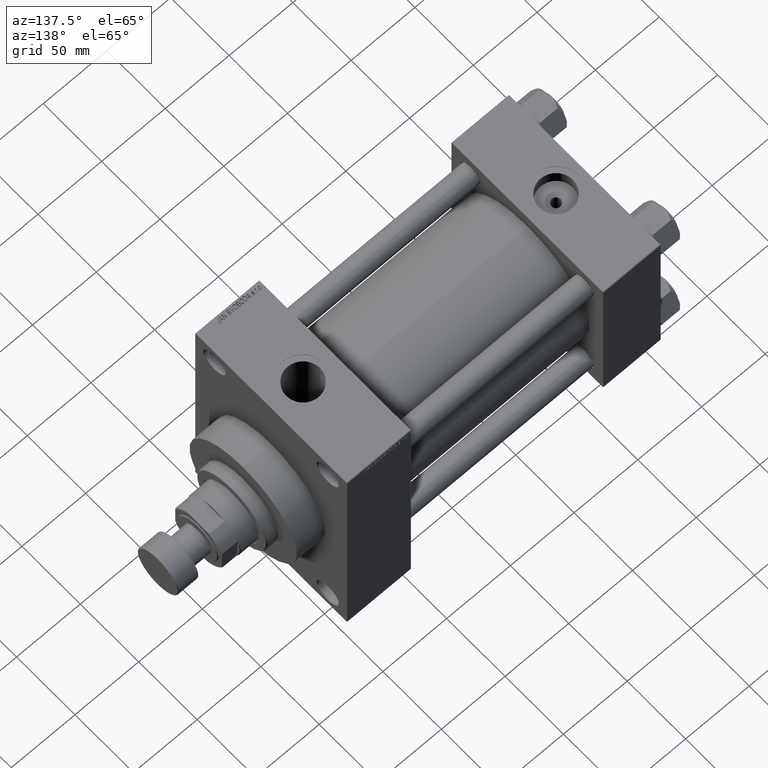
[diagram: clean part render]
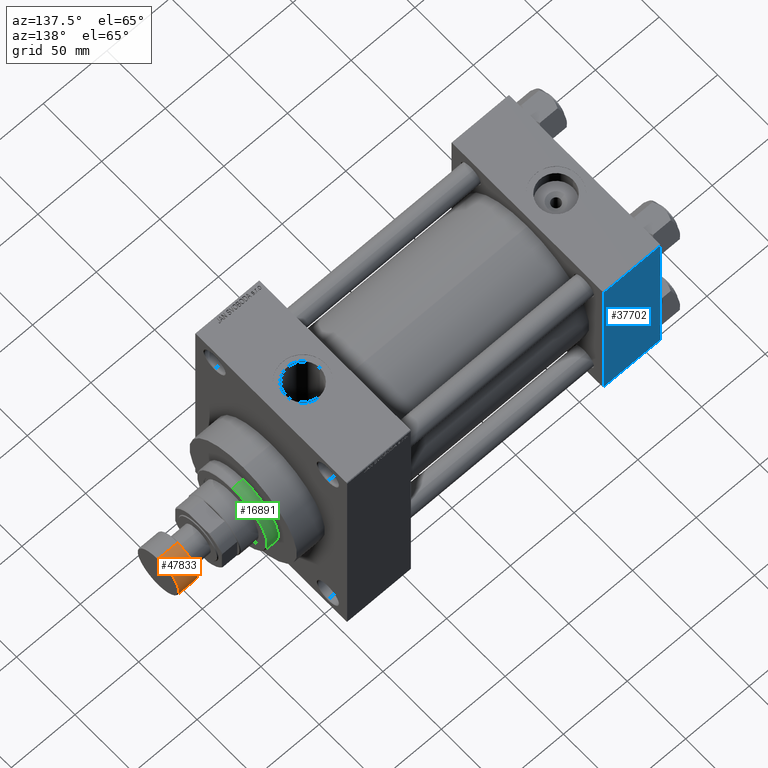
[diagram: same view with three faces highlighted in distinct colors, each labeled with its STEP entity id]
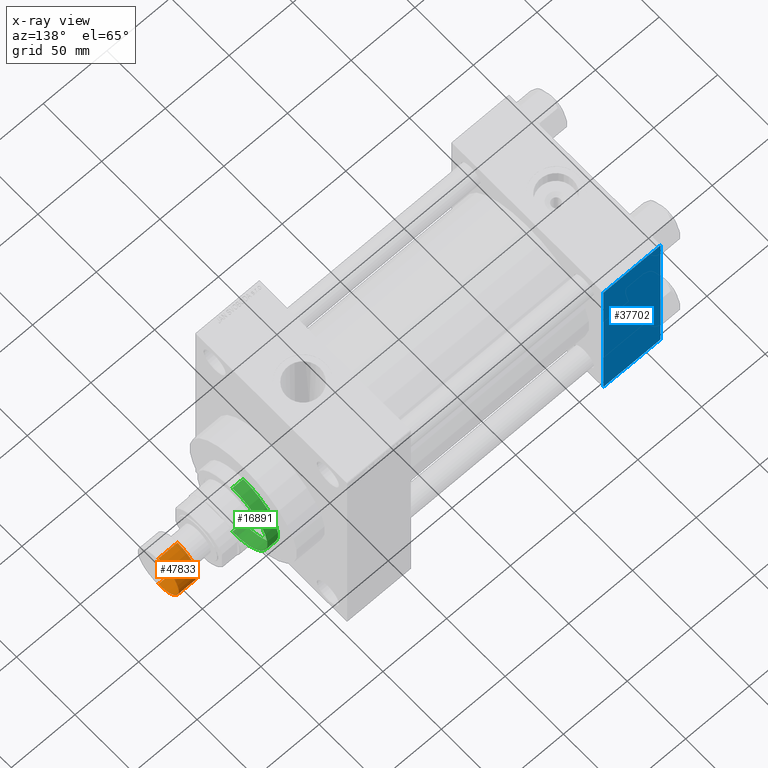
[diagram: x-ray of the same camera — body ghosted, the three highlighted faces saturated]
A machine part, auxiliary view with three faces highlighted in distinct colors.
The next image is the same camera in x-ray (body ghosted, the three faces saturated) — at least one of them is partly hidden behind the body in this view.
Their STEP definitions:

[orange] entity #47833 — the highlighted cylindrical surface (edge-blend (fillet) strip) has radius 17.5 mm, axis along (1, 0, 0).
#1534 = CARTESIAN_POINT ( 'NONE',  ( 17.50000000000000355, 0.000000000000000000, -15.50000000000000000 ) ) ;
#1597 = EDGE_LOOP ( 'NONE', ( #19104, #9217, #35780, #35226 ) ) ;
#1775 = DIRECTION ( 'NONE',  ( 0.000000000000000000, 0.000000000000000000, 1.000000000000000000 ) ) ;
#2629 = DIRECTION ( 'NONE',  ( -0.000000000000000000, -0.000000000000000000, -1.000000000000000000 ) ) ;
#4129 = VECTOR ( 'NONE', #20051, 1000.000000000000000 ) ;
#4612 = DIRECTION ( 'NONE',  ( 0.000000000000000000, 0.000000000000000000, 1.000000000000000000 ) ) ;
#5244 = DIRECTION ( 'NONE',  ( 0.000000000000000000, 0.000000000000000000, 1.000000000000000000 ) ) ;
#6833 = VERTEX_POINT ( 'NONE', #10805 ) ;
#8410 = DIRECTION ( 'NONE',  ( 1.000000000000000000, 0.000000000000000000, 0.000000000000000000 ) ) ;
#9217 = ORIENTED_EDGE ( 'NONE', *, *, #32279, .T. ) ;
#9410 = CARTESIAN_POINT ( 'NONE',  ( 17.50000000000000355, 0.000000000000000000, -0.5000000000000004441 ) ) ;
#10805 = CARTESIAN_POINT ( 'NONE',  ( -17.50000000000000355, 2.143131898507868643E-15, -15.50000000000000000 ) ) ;
#12411 = CARTESIAN_POINT ( 'NONE',  ( 0.000000000000000000, 0.000000000000000000, -0.5000000000000004441 ) ) ;
#14746 = EDGE_CURVE ( 'NONE', #24363, #37022, #19382, .T. ) ;
#16433 = FACE_OUTER_BOUND ( 'NONE', #1597, .T. ) ;
#17051 = AXIS2_PLACEMENT_3D ( 'NONE', #12411, #2629, #31406 ) ;
#19104 = ORIENTED_EDGE ( 'NONE', *, *, #19521, .T. ) ;
#19382 = CIRCLE ( 'NONE', #17051, 17.50000000000000355 ) ;
#19521 = EDGE_CURVE ( 'NONE', #32306, #6833, #31194, .T. ) ;
#20051 = DIRECTION ( 'NONE',  ( 0.000000000000000000, 0.000000000000000000, 1.000000000000000000 ) ) ;
#21981 = CARTESIAN_POINT ( 'NONE',  ( 0.000000000000000000, 0.000000000000000000, -15.50000000000000000 ) ) ;
#24363 = VERTEX_POINT ( 'NONE', #29172 ) ;
#26357 = EDGE_CURVE ( 'NONE', #32306, #37022, #41930, .T. ) ;
#26923 = CARTESIAN_POINT ( 'NONE',  ( 0.000000000000000000, 0.000000000000000000, -16.00000000000000000 ) ) ;
#27819 = LINE ( 'NONE', #35819, #34571 ) ;
#29172 = CARTESIAN_POINT ( 'NONE',  ( -17.50000000000000355, 2.143131898507868643E-15, -0.5000000000000004441 ) ) ;
#30815 = CYLINDRICAL_SURFACE ( 'NONE', #46180, 17.50000000000000355 ) ;
#31194 = CIRCLE ( 'NONE', #35831, 17.50000000000000355 ) ;
#31406 = DIRECTION ( 'NONE',  ( 1.000000000000000000, 0.000000000000000000, 0.000000000000000000 ) ) ;
#32279 = EDGE_CURVE ( 'NONE', #6833, #24363, #27819, .T. ) ;
#32306 = VERTEX_POINT ( 'NONE', #1534 ) ;
#33408 = DIRECTION ( 'NONE',  ( 1.000000000000000000, 0.000000000000000000, 0.000000000000000000 ) ) ;
#34159 = CARTESIAN_POINT ( 'NONE',  ( 17.50000000000000355, 0.000000000000000000, -16.00000000000000000 ) ) ;
#34571 = VECTOR ( 'NONE', #1775, 1000.000000000000000 ) ;
#35226 = ORIENTED_EDGE ( 'NONE', *, *, #26357, .F. ) ;
#35780 = ORIENTED_EDGE ( 'NONE', *, *, #14746, .T. ) ;
#35819 = CARTESIAN_POINT ( 'NONE',  ( -17.50000000000000355, 2.143131898507868643E-15, -16.00000000000000000 ) ) ;
#35831 = AXIS2_PLACEMENT_3D ( 'NONE', #21981, #4612, #33408 ) ;
#37022 = VERTEX_POINT ( 'NONE', #9410 ) ;
#41930 = LINE ( 'NONE', #34159, #4129 ) ;
#46180 = AXIS2_PLACEMENT_3D ( 'NONE', #26923, #5244, #8410 ) ;
#47833 = ADVANCED_FACE ( 'NONE', ( #16433 ), #30815, .T. ) ;

[blue] entity #37702 — the highlighted planar face has unit normal (0, 1, 0).
#187 = CARTESIAN_POINT ( 'NONE',  ( 0.000000000000000000, 65.00000000000000000, 65.00000000000001421 ) ) ;
#1572 = ORIENTED_EDGE ( 'NONE', *, *, #1805, .T. ) ;
#1805 = EDGE_CURVE ( 'NONE', #47587, #46202, #20616, .T. ) ;
#2027 = EDGE_LOOP ( 'NONE', ( #38211, #1572, #46189, #26405 ) ) ;
#5386 = EDGE_CURVE ( 'NONE', #39507, #46202, #41532, .T. ) ;
#5939 = CARTESIAN_POINT ( 'NONE',  ( 45.00000000000000000, 65.00000000000000000, 64.49999999999998579 ) ) ;
#6155 = EDGE_CURVE ( 'NONE', #39507, #6782, #30734, .T. ) ;
#6782 = VERTEX_POINT ( 'NONE', #5939 ) ;
#10447 = FACE_OUTER_BOUND ( 'NONE', #2027, .T. ) ;
#14102 = CARTESIAN_POINT ( 'NONE',  ( 45.00000000000000000, 65.00000000000000000, 65.00000000000001421 ) ) ;
#15687 = AXIS2_PLACEMENT_3D ( 'NONE', #14102, #18482, #18001 ) ;
#16067 = CARTESIAN_POINT ( 'NONE',  ( 45.00000000000000000, 65.00000000000000000, -64.49999999999995737 ) ) ;
#16962 = CARTESIAN_POINT ( 'NONE',  ( 45.00000000000000000, 65.00000000000000000, -64.49999999999995737 ) ) ;
#18001 = DIRECTION ( 'NONE',  ( 0.000000000000000000, -0.000000000000000000, 1.000000000000000000 ) ) ;
#18482 = DIRECTION ( 'NONE',  ( -0.000000000000000000, 1.000000000000000000, 0.000000000000000000 ) ) ;
#20048 = VECTOR ( 'NONE', #37770, 1000.000000000000000 ) ;
#20616 = LINE ( 'NONE', #16962, #45643 ) ;
#22812 = VECTOR ( 'NONE', #30812, 1000.000000000000000 ) ;
#26405 = ORIENTED_EDGE ( 'NONE', *, *, #6155, .T. ) ;
#28014 = EDGE_CURVE ( 'NONE', #6782, #47587, #34446, .T. ) ;
#29444 = PLANE ( 'NONE',  #15687 ) ;
#29899 = DIRECTION ( 'NONE',  ( 0.000000000000000000, 0.000000000000000000, -1.000000000000000000 ) ) ;
#30734 = LINE ( 'NONE', #45563, #20048 ) ;
#30812 = DIRECTION ( 'NONE',  ( 0.000000000000000000, 0.000000000000000000, -1.000000000000000000 ) ) ;
#31049 = CARTESIAN_POINT ( 'NONE',  ( 45.00000000000000000, 65.00000000000000000, 65.00000000000001421 ) ) ;
#34446 = LINE ( 'NONE', #31049, #22812 ) ;
#37702 = ADVANCED_FACE ( 'NONE', ( #10447 ), #29444, .T. ) ;
#37770 = DIRECTION ( 'NONE',  ( 1.000000000000000000, 0.000000000000000000, 0.000000000000000000 ) ) ;
#38211 = ORIENTED_EDGE ( 'NONE', *, *, #28014, .T. ) ;
#38666 = VECTOR ( 'NONE', #29899, 1000.000000000000000 ) ;
#39507 = VERTEX_POINT ( 'NONE', #42093 ) ;
#41532 = LINE ( 'NONE', #187, #38666 ) ;
#42093 = CARTESIAN_POINT ( 'NONE',  ( 0.000000000000000000, 65.00000000000000000, 64.49999999999998579 ) ) ;
#43395 = CARTESIAN_POINT ( 'NONE',  ( 0.000000000000000000, 65.00000000000000000, -64.49999999999995737 ) ) ;
#45563 = CARTESIAN_POINT ( 'NONE',  ( 45.00000000000000000, 65.00000000000000000, 64.49999999999998579 ) ) ;
#45643 = VECTOR ( 'NONE', #46636, 1000.000000000000000 ) ;
#46189 = ORIENTED_EDGE ( 'NONE', *, *, #5386, .F. ) ;
#46202 = VERTEX_POINT ( 'NONE', #43395 ) ;
#46636 = DIRECTION ( 'NONE',  ( -1.000000000000000000, 0.000000000000000000, 0.000000000000000000 ) ) ;
#47587 = VERTEX_POINT ( 'NONE', #16067 ) ;

[green] entity #16891 — the highlighted cylindrical surface (partial cylindrical patch) has radius 30 mm, axis along (-1, 0, 0).
#366 = DIRECTION ( 'NONE',  ( 0.000000000000000000, 0.000000000000000000, 1.000000000000000000 ) ) ;
#1987 = VERTEX_POINT ( 'NONE', #46347 ) ;
#2008 = EDGE_CURVE ( 'NONE', #43790, #1987, #37883, .T. ) ;
#3281 = ORIENTED_EDGE ( 'NONE', *, *, #5664, .T. ) ;
#3721 = DIRECTION ( 'NONE',  ( -0.000000000000000000, -0.000000000000000000, -1.000000000000000000 ) ) ;
#5664 = EDGE_CURVE ( 'NONE', #35036, #26180, #44119, .T. ) ;
#7190 = CARTESIAN_POINT ( 'NONE',  ( -30.00000000000000000, 0.000000000000000000, 52.25999999999999801 ) ) ;
#8379 = CARTESIAN_POINT ( 'NONE',  ( -30.00000000000000000, 0.000000000000000000, 43.25999999999999801 ) ) ;
#9596 = EDGE_LOOP ( 'NONE', ( #33964, #18135, #14935, #3281 ) ) ;
#13006 = CARTESIAN_POINT ( 'NONE',  ( 0.000000000000000000, 0.000000000000000000, 51.75999999999999091 ) ) ;
#14596 = AXIS2_PLACEMENT_3D ( 'NONE', #25715, #366, #14756 ) ;
#14756 = DIRECTION ( 'NONE',  ( 1.000000000000000000, 0.000000000000000000, 0.000000000000000000 ) ) ;
#14935 = ORIENTED_EDGE ( 'NONE', *, *, #21245, .T. ) ;
#16114 = AXIS2_PLACEMENT_3D ( 'NONE', #13006, #24208, #47067 ) ;
#16891 = ADVANCED_FACE ( 'NONE', ( #44710 ), #44466, .T. ) ;
#17667 = EDGE_CURVE ( 'NONE', #43790, #26180, #47757, .T. ) ;
#18135 = ORIENTED_EDGE ( 'NONE', *, *, #2008, .T. ) ;
#21245 = EDGE_CURVE ( 'NONE', #1987, #35036, #44668, .T. ) ;
#24208 = DIRECTION ( 'NONE',  ( 0.000000000000000000, 0.000000000000000000, -1.000000000000000000 ) ) ;
#25507 = DIRECTION ( 'NONE',  ( -0.000000000000000000, -0.000000000000000000, -1.000000000000000000 ) ) ;
#25715 = CARTESIAN_POINT ( 'NONE',  ( 0.000000000000000000, 0.000000000000000000, 43.25999999999999801 ) ) ;
#25745 = DIRECTION ( 'NONE',  ( -1.000000000000000000, 0.000000000000000000, 0.000000000000000000 ) ) ;
#25993 = CARTESIAN_POINT ( 'NONE',  ( 0.000000000000000000, 0.000000000000000000, 52.25999999999999801 ) ) ;
#26180 = VERTEX_POINT ( 'NONE', #35170 ) ;
#31143 = VECTOR ( 'NONE', #40523, 1000.000000000000000 ) ;
#31874 = VECTOR ( 'NONE', #3721, 1000.000000000000000 ) ;
#33458 = AXIS2_PLACEMENT_3D ( 'NONE', #25993, #25507, #25745 ) ;
#33964 = ORIENTED_EDGE ( 'NONE', *, *, #17667, .F. ) ;
#35036 = VERTEX_POINT ( 'NONE', #8379 ) ;
#35170 = CARTESIAN_POINT ( 'NONE',  ( 30.00000000000000000, 3.673940397442059178E-15, 43.25999999999999801 ) ) ;
#37883 = CIRCLE ( 'NONE', #16114, 30.00000000000000000 ) ;
#40443 = CARTESIAN_POINT ( 'NONE',  ( 30.00000000000000000, 3.673940397442059178E-15, 52.25999999999999801 ) ) ;
#40523 = DIRECTION ( 'NONE',  ( -0.000000000000000000, -0.000000000000000000, -1.000000000000000000 ) ) ;
#43790 = VERTEX_POINT ( 'NONE', #47882 ) ;
#44119 = CIRCLE ( 'NONE', #14596, 30.00000000000000000 ) ;
#44466 = CYLINDRICAL_SURFACE ( 'NONE', #33458, 30.00000000000000000 ) ;
#44668 = LINE ( 'NONE', #7190, #31143 ) ;
#44710 = FACE_OUTER_BOUND ( 'NONE', #9596, .T. ) ;
#46347 = CARTESIAN_POINT ( 'NONE',  ( -30.00000000000000000, 0.000000000000000000, 51.75999999999999091 ) ) ;
#47067 = DIRECTION ( 'NONE',  ( 1.000000000000000000, 0.000000000000000000, 0.000000000000000000 ) ) ;
#47757 = LINE ( 'NONE', #40443, #31874 ) ;
#47882 = CARTESIAN_POINT ( 'NONE',  ( 30.00000000000000000, 3.673940397442059178E-15, 51.75999999999999091 ) ) ;